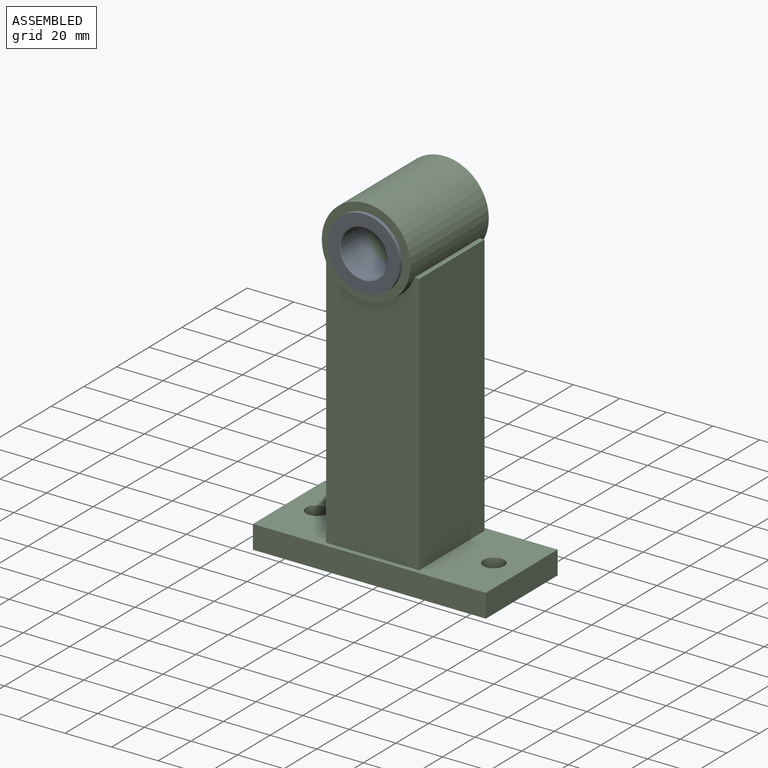
[diagram: assembled view]
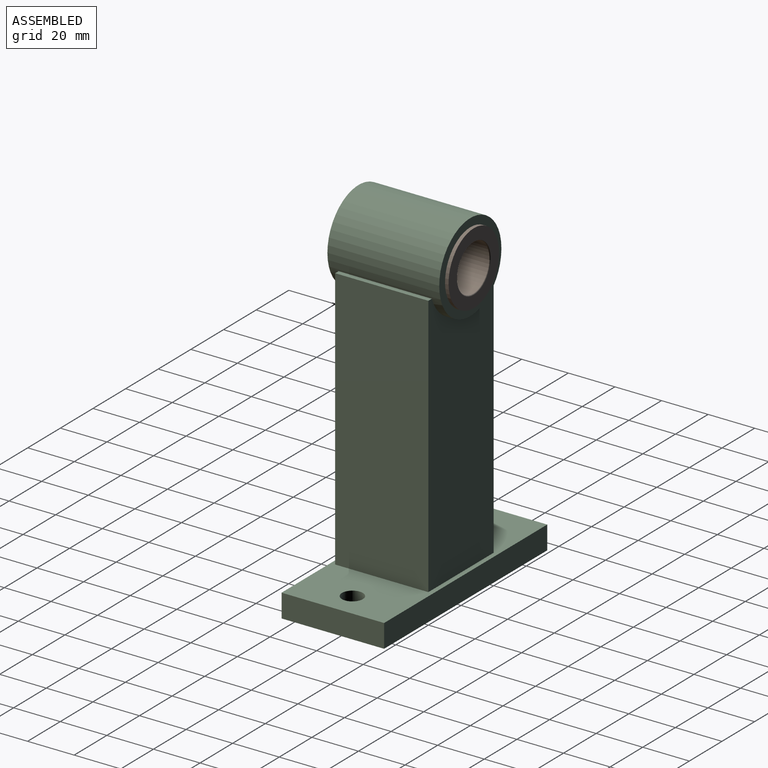
[diagram: assembled view, second angle]
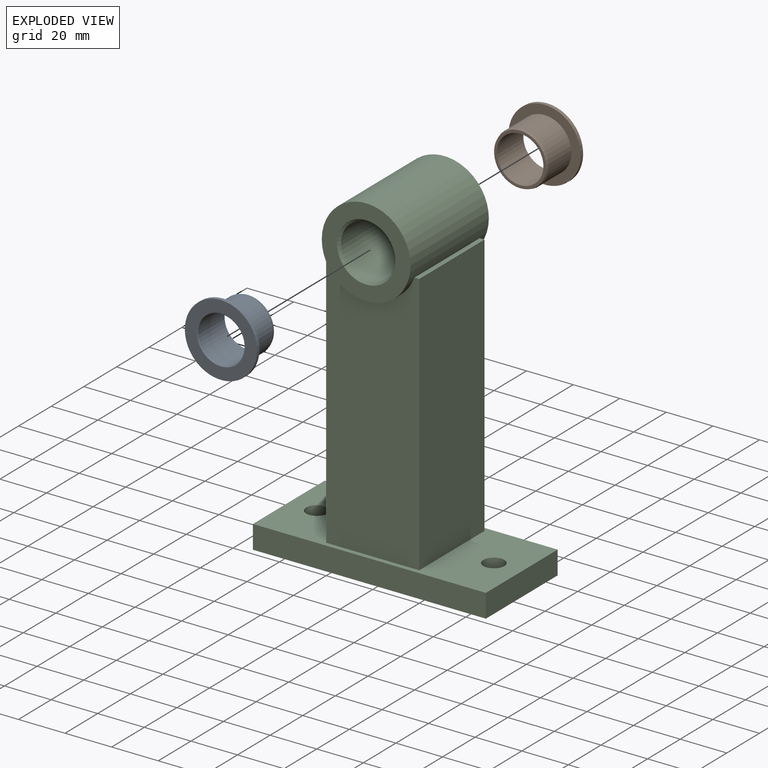
[diagram: exploded view]
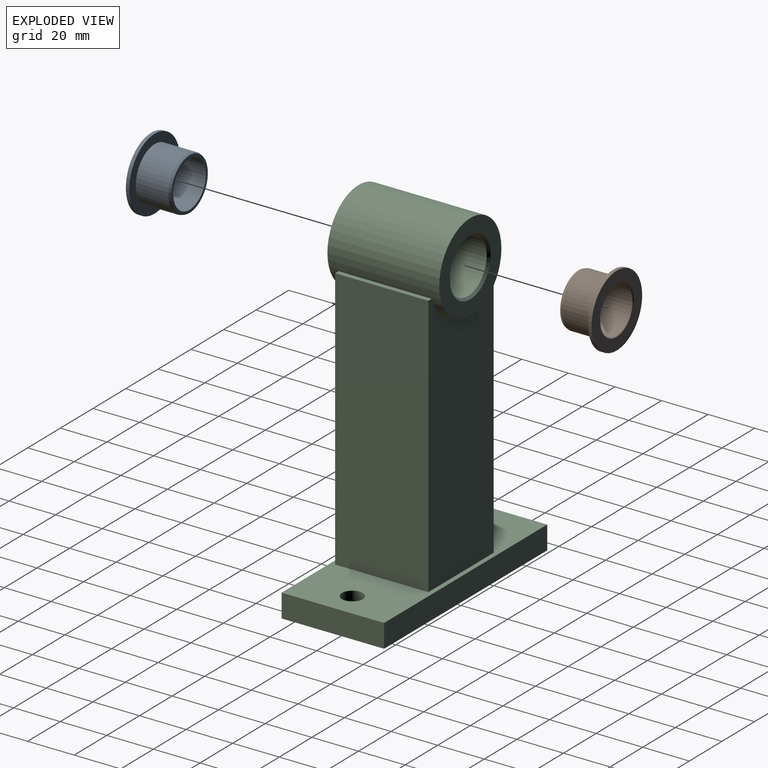
[diagram: exploded view, second angle]
ASSEMBLY  parts=3 mates=2
PART A: 8 faces, bbox 31x16.5x31 mm
  f0: plane 31x31mm, normal (0,1,0), area 339.3mm2, adj f1,f5
  f1: cylinder r=15.5mm len=31mm, axis (0,-1,0), area 146.1mm2, adj f0,f2
  f2: plane 31x31mm, normal (0,-1,0), area 415mm2, adj f1,f6
  f3: cylinder r=10mm len=20mm, axis (0,-1,0), area 1011.6mm2, adj f4,f6
  f4: plane 22.4x22.4mm, normal (0,1,0), area 79.9mm2, adj f3,f7
  f5: cylinder r=11.5mm len=23mm, axis (0,-1,0), area 1011.6mm2, adj f0,f7
  f6: torus R=10.4mm, axis (0,1,0), area 40.1mm2, adj f2,f3
  f7: cone r=11.5mm half-angle=16.7deg, axis (0,-1,0), area 74.5mm2, adj f4,f5
PART B: same geometry as A
PART C: 26 faces, bbox 100x48x148.6 mm
  f0: plane 40x2.09mm, normal (0,0,1), area 83.7mm2, adj f3,f4,f5,f6
  f1: plane 40x2.09mm, normal (0,0,1), area 83.7mm2, adj f2,f4,f5,f6
  f2: plane 113x40mm, normal (-1,0,0), area 4520mm2, adj f1,f4,f5,f10
  f3: plane 113x40mm, normal (1,0,0), area 4520mm2, adj f0,f4,f5,f10
  f4: plane 113x40mm, normal (0,-1,0), area 4192.7mm2, adj f0,f1,f2,f3,f6,f10
  f5: plane 113x40mm, normal (0,1,0), area 4192.7mm2, adj f0,f1,f2,f3,f6,f10
  f6: cylinder r=19.05mm len=48mm, axis (0,1,0), area 3882.1mm2, adj f0,f1,f4,f5,f7,f8
  f7: plane 38.1x38.1mm, normal (0,-1,0), area 649.2mm2, adj f6,f18
  f8: plane 38.1x38.1mm, normal (0,1,0), area 649.2mm2, adj f6,f19
  f9: cylinder r=11.5mm len=46mm, axis (0,-1,0), area 3323.8mm2, adj f18,f19
  f10: plane 100x44mm, normal (0,0,1), area 2672.8mm2, adj f2,f3,f4,f5,f11,f12,f13,f14
  f11: plane 100x10mm, normal (0,1,0), area 1000mm2, adj f10,f12,f14,f15
  f12: plane 44x10mm, normal (1,0,0), area 440mm2, adj f10,f11,f13,f15
  f13: plane 100x10mm, normal (0,-1,0), area 1000mm2, adj f10,f12,f14,f15
  f14: plane 44x10mm, normal (-1,0,0), area 440mm2, adj f10,f11,f13,f15
  f15: plane 100x44mm, normal (0,0,-1), area 4272.8mm2, adj f11,f12,f13,f14,f16,f17
  f16: cylinder r=4.5mm len=10mm, axis (0,0,1), area 282.7mm2, adj f10,f15
  f17: cylinder r=4.5mm len=10mm, axis (0,0,1), area 282.7mm2, adj f10,f15
  f18: cone r=11.5mm half-angle=45deg, axis (0,-1,0), area 106.6mm2, adj f7,f9
  f19: cone r=11.5mm half-angle=45deg, axis (0,1,0), area 106.6mm2, adj f8,f9
  f20: plane 35.4x35.4mm, normal (0,0,1), area 1253.2mm2, adj f22,f23,f24,f25
  f21: cylinder r=19.05mm len=35.4mm, axis (0,1,0), area 1607.8mm2, adj f22,f23,f24,f25
  f22: plane 112.46x35.4mm, normal (-1,0,0), area 3981mm2, adj f20,f21,f23,f25
  f23: plane 112.46x35.4mm, normal (0,1,0), area 3673mm2, adj f20,f21,f22,f24
  f24: plane 112.46x35.4mm, normal (1,0,0), area 3981mm2, adj f20,f21,f23,f25
  f25: plane 112.46x35.4mm, normal (0,-1,0), area 3673mm2, adj f20,f21,f22,f24
PLACE A rot(axis=(0,1,0),180deg) t=(0,-25.5,0)mm
PLACE B rot(axis=(1,0,0),180deg) t=(0,25.5,0)mm
PLACE C at identity
MATE fastened B.f1 <-> C.f6  axis (0,-1,0) through (0,24,0)mm
MATE fastened A.f1 <-> C.f6  axis (0,1,0) through (0,-24,0)mm
